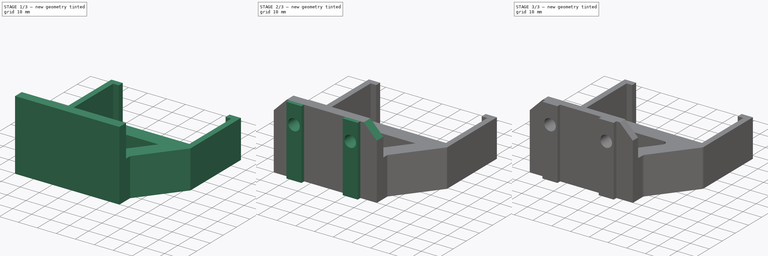
[diagram: build sequence overview — one tinted view per stage of 3, left to right]
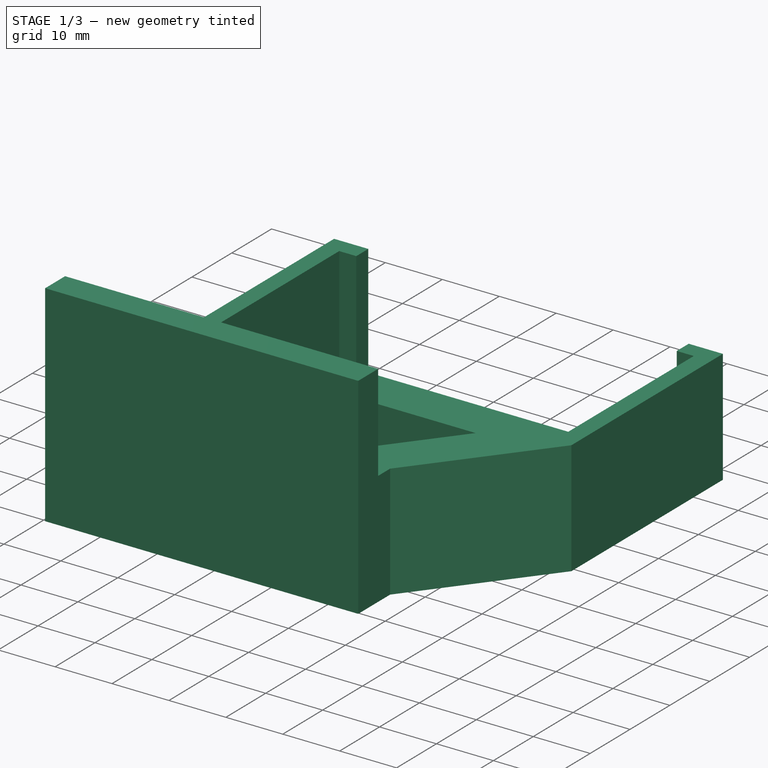
[diagram: stage 1 of 3 — iso view after this stage's code; geometry added in this stage tinted green]
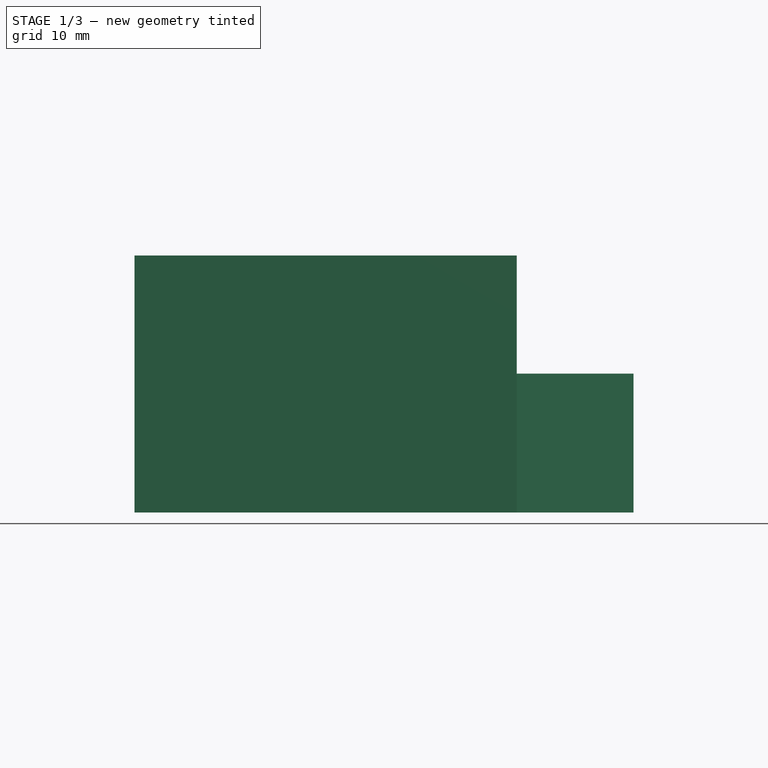
[diagram: stage 1 of 3 — front view after this stage's code; geometry added in this stage tinted green]
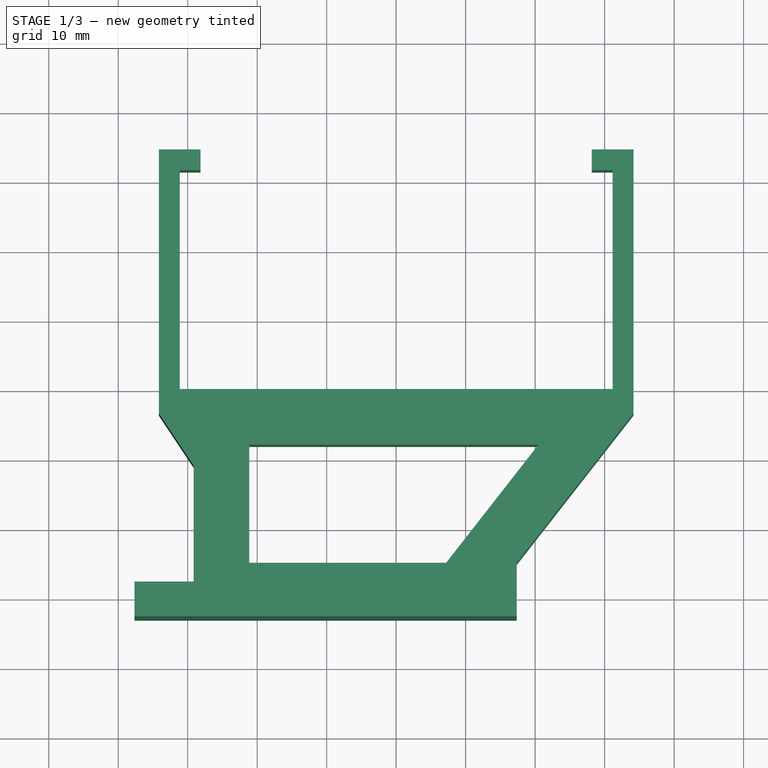
[diagram: stage 1 of 3 — top view after this stage's code; geometry added in this stage tinted green]
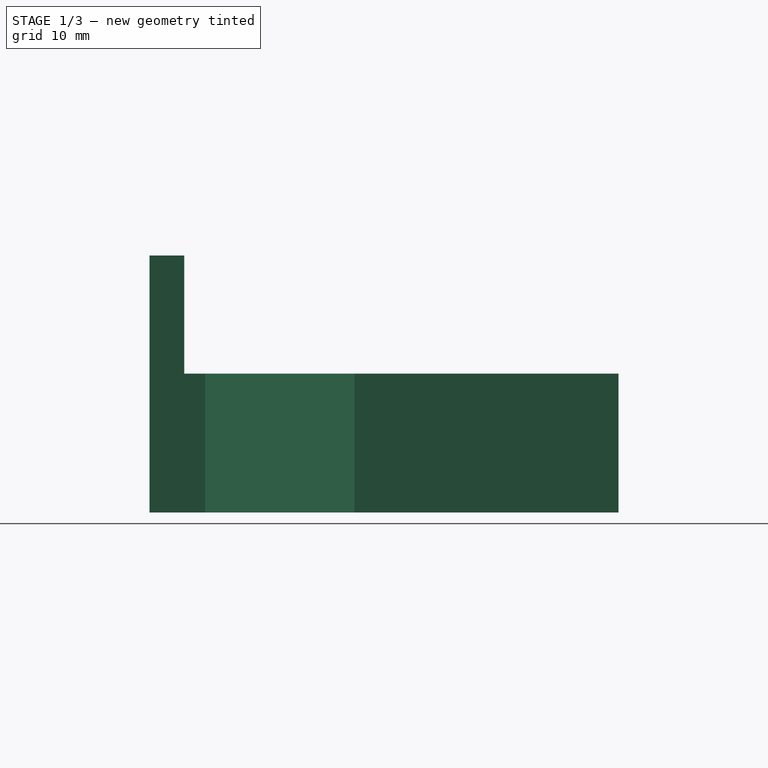
[diagram: stage 1 of 3 — right view after this stage's code; geometry added in this stage tinted green]
FCSTD DOCUMENT  (FreeCAD 0.20R)
Label: psu_holderM6
License: All rights reserved
LicenseURL: http://en.wikipedia.org/wiki/All_rights_reserved
objects: Sketcher::SketchObject×4, PartDesign::Pad×3, PartDesign::Chamfer×2, PartDesign::Pocket×1, PartDesign::Fillet×1, PartDesign::Body×1
note: 19 computed .brp shape members not serialized (recipe doc carries the construction recipe); baked Part::Feature solids carry a one-line shape summary decoded from their .brp

FEATURE [Sketcher::SketchObject] Sketch
  FullyConstrained = true
  MapMode = 5
  Support = -> [XY_Plane]
  sketch-geometry (20):
    g0: LineSegment StartX=-31.15 StartY=0 StartZ=0 EndX=31.15 EndY=0 EndZ=0
    g1: LineSegment StartX=31.15 StartY=0 StartZ=0 EndX=31.15 EndY=31.5 EndZ=0
    g2: LineSegment StartX=31.15 StartY=31.5 StartZ=0 EndX=28.15 EndY=31.5 EndZ=0
    g3: LineSegment StartX=28.15 StartY=31.5 StartZ=0 EndX=28.15 EndY=34.5 EndZ=0
    g4: LineSegment StartX=28.15 StartY=34.5 StartZ=0 EndX=34.15 EndY=34.5 EndZ=0
    g5: LineSegment StartX=34.15 StartY=34.5 StartZ=0 EndX=34.15 EndY=-3.5 EndZ=0
    g6: LineSegment StartX=34.15 StartY=-3.5 StartZ=0 EndX=17.35 EndY=-25 EndZ=0
    g7: LineSegment StartX=17.35 StartY=-25 StartZ=0 EndX=17.35 EndY=-33 EndZ=0
    g8: LineSegment StartX=17.35 StartY=-33 StartZ=0 EndX=-29.15 EndY=-33 EndZ=0
    g9: LineSegment StartX=-29.15 StartY=-33 StartZ=0 EndX=-29.15 EndY=-11 EndZ=0
    g10: LineSegment StartX=-29.15 StartY=-11 StartZ=0 EndX=-34.15 EndY=-3.5 EndZ=0
    g11: LineSegment StartX=-34.15 StartY=-3.5 StartZ=0 EndX=-34.15 EndY=34.5 EndZ=0
    g12: LineSegment StartX=-34.15 StartY=34.5 StartZ=0 EndX=-28.15 EndY=34.5 EndZ=0
    g13: LineSegment StartX=-28.15 StartY=34.5 StartZ=0 EndX=-28.15 EndY=31.5 EndZ=0
    g14: LineSegment StartX=-28.15 StartY=31.5 StartZ=0 EndX=-31.15 EndY=31.5 EndZ=0
    g15: LineSegment StartX=-31.15 StartY=31.5 StartZ=0 EndX=-31.15 EndY=0 EndZ=0
    g16: LineSegment StartX=-21.15 StartY=-8 StartZ=0 EndX=20.481 EndY=-8 EndZ=0
    g17: LineSegment StartX=20.481 StartY=-8 StartZ=0 EndX=7.19731 EndY=-25 EndZ=0
    g18: LineSegment StartX=7.19731 StartY=-25 StartZ=0 EndX=-21.15 EndY=-25 EndZ=0
    g19: LineSegment StartX=-21.15 StartY=-25 StartZ=0 EndX=-21.15 EndY=-8 EndZ=0
  constraints (57):
    c: Coincident(g0,g1)
    c: Vertical(g1)
    c: Coincident(g1,g2)
    c: Coincident(g2,g3)
    c: Vertical(g3)
    c: Coincident(g3,g4)
    c: Horizontal(g4)
    c: Coincident(g4,g5)
    c: Vertical(g5)
    c: Coincident(g5,g6)
    c: Coincident(g6,g7)
    c: Vertical(g7)
    c: Coincident(g7,g8)
    c: Horizontal(g8)
    c: Vertical(g9)
    c: Coincident(g9,g10)
    c: Coincident(g10,g11)
    c: Vertical(g11)
    c: Coincident(g11,g12)
    c: Horizontal(g12)
    c: Coincident(g12,g13)
    c: Coincident(g13,g14)
    c: Horizontal(g14)
    c: Coincident(g14,g15)
    c: Vertical(g15)
    c: Coincident(g0,g15)
    c: Horizontal(g16)
    c: Coincident(g16,g17)
    c: Coincident(g17,g18)
    c: Horizontal(g18)
    c: Coincident(g18,g19)
    c: Vertical(g19)
    c: Coincident(g16,g19)
    c: Horizontal(g2)
    c: Symmetric(g0,g0,g-2)
    c: Symmetric(g13,g2,g-2)
    c: Symmetric(g11,g4,g-2)
    c: Equal(g12,g4)
    c: Equal(g11,g5)
    c: Distance(g15) = 31.5
    c: Distance(g13) = 3
    c: Distance(g14) = 3
    c: Distance(g14,g11) = 3
    c: Distance(g16,g0) = 8
    c: Distance(g16,g9) = 8
    c: Parallel(g6,g17)
    c: Distance(g16,g6) = 8
    c: Distance(g17,g8) = 8
    c: Coincident(g8,g9)
    c: Distance(g19) = 17
    c: Distance(g18,g11) = 13
    c: Distance(g0) = 62.3
    c: Distance(g8) = 46.5
    c: DistanceY(g11,g11) = 38
    c: Distance(g7) = 8
    c: Distance(g9) = 22
    c: PointOnObject(g0,g-1)
FEATURE [PartDesign::Pad] Pad
  Direction = (0,0,1)
  Length = 20
  Length2 = 10
  Profile = -> Sketch
  ReferenceAxis = -> Sketch [N_Axis]
  Type = 0
FEATURE [Sketcher::SketchObject] Sketch001
  ExternalGeometry = -> [Pad]
  FullyConstrained = true
  MapMode = 5
  Placement = pos=(0,0,0) rot=(1,0,0;3.14159rad)
  Support = -> [Pad]
  sketch-geometry (4):
    g0: LineSegment StartX=17.35 StartY=33 StartZ=0 EndX=-37.65 EndY=33 EndZ=0
    g1: LineSegment StartX=-37.65 StartY=33 StartZ=0 EndX=-37.65 EndY=28 EndZ=0
    g2: LineSegment StartX=-37.65 StartY=28 StartZ=0 EndX=17.35 EndY=28 EndZ=0
    g3: LineSegment StartX=17.35 StartY=28 StartZ=0 EndX=17.35 EndY=33 EndZ=0
  constraints (11):
    c: Coincident(g0,g1)
    c: Coincident(g1,g2)
    c: Coincident(g2,g3)
    c: Coincident(g3,g0)
    c: Horizontal(g0)
    c: Horizontal(g2)
    c: Vertical(g1)
    c: Vertical(g3)
    c: Coincident(g0,g-4)
    c: Distance(g1) = 5
    c: Distance(g0) = 55
FEATURE [PartDesign::Pad] Pad001
  BaseFeature = -> Pad
  Direction = (0,0,-1)
  Length = 37
  Length2 = 10
  Profile = -> Sketch001
  ReferenceAxis = -> Sketch001 [N_Axis]
  Refine = true
  Reversed = true
  Type = 0
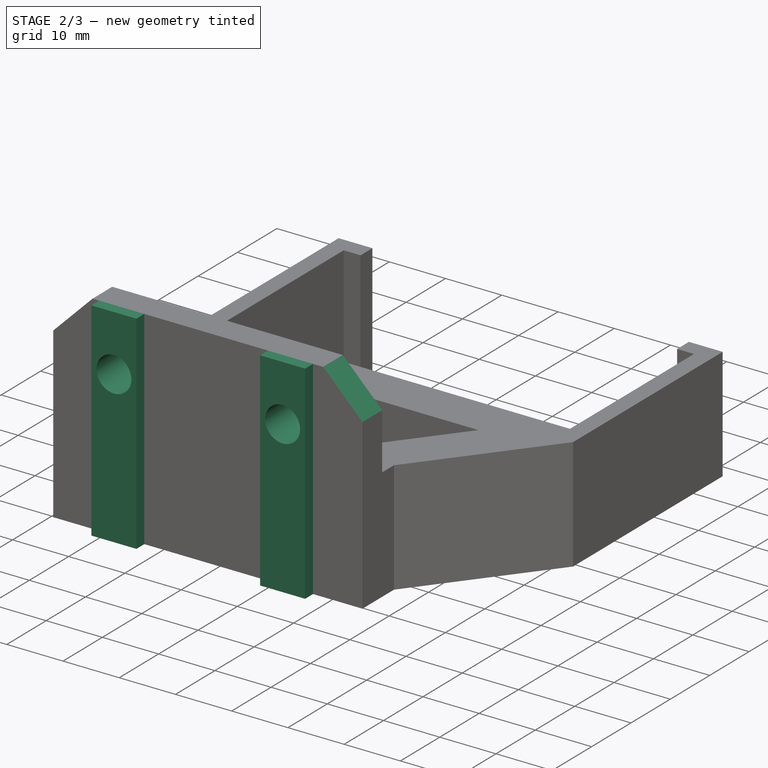
[diagram: stage 2 of 3 — iso view after this stage's code; geometry added in this stage tinted green]
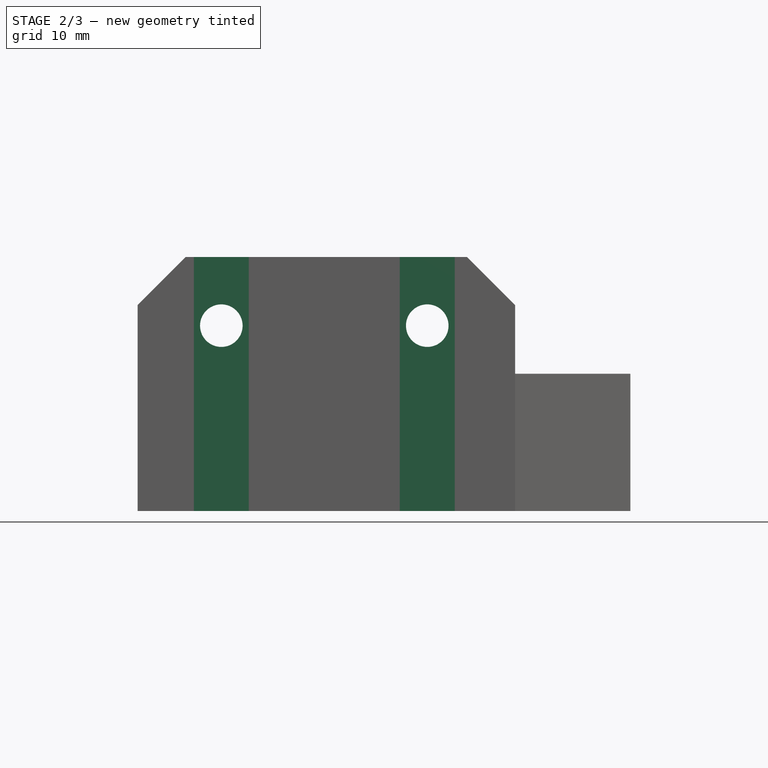
[diagram: stage 2 of 3 — front view after this stage's code; geometry added in this stage tinted green]
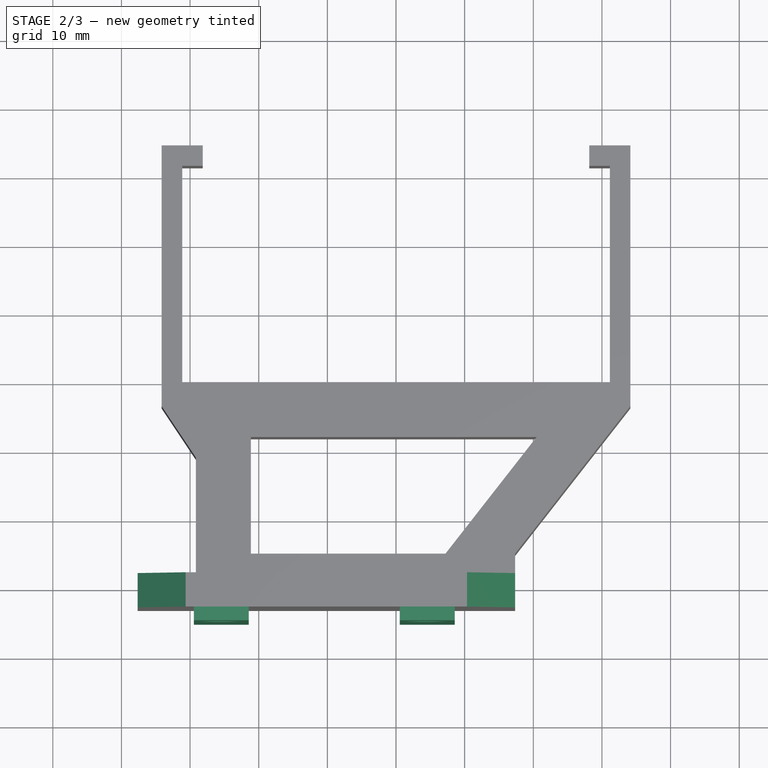
[diagram: stage 2 of 3 — top view after this stage's code; geometry added in this stage tinted green]
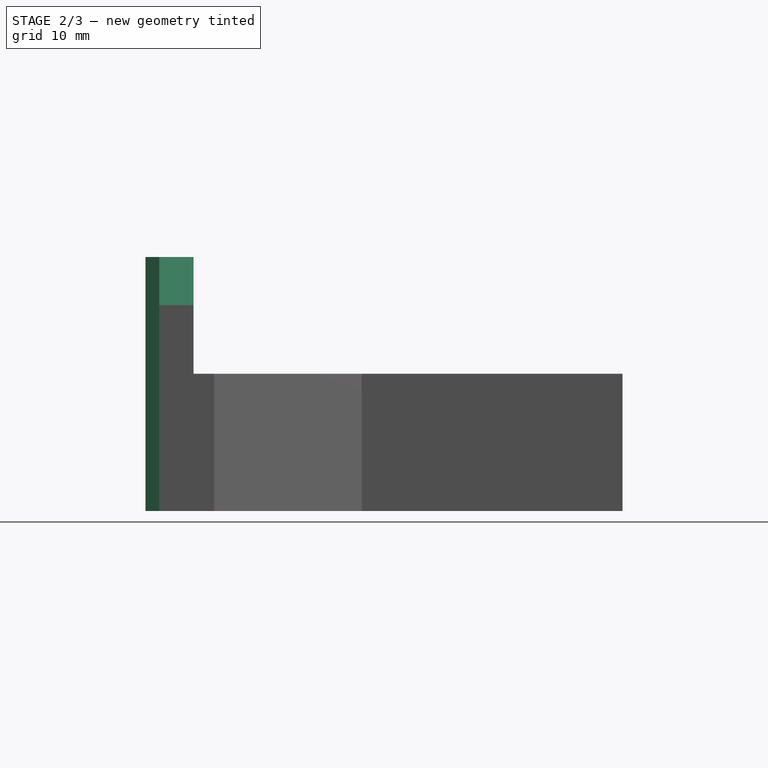
[diagram: stage 2 of 3 — right view after this stage's code; geometry added in this stage tinted green]
FEATURE [Sketcher::SketchObject] Sketch002
  ExternalGeometry = -> [Pad001]
  FullyConstrained = true
  MapMode = 5
  Placement = pos=(0,-33,0) rot=(1,0,0;1.5708rad)
  Support = -> [Pad001]
  sketch-geometry (8):
    g0: LineSegment StartX=0.55 StartY=37 StartZ=0 EndX=8.55 EndY=37 EndZ=0
    g1: LineSegment StartX=8.55 StartY=37 StartZ=0 EndX=8.55 EndY=0 EndZ=0
    g2: LineSegment StartX=8.55 StartY=0 StartZ=0 EndX=0.55 EndY=0 EndZ=0
    g3: LineSegment StartX=0.55 StartY=0 StartZ=0 EndX=0.55 EndY=37 EndZ=0
    g4: LineSegment StartX=-29.45 StartY=37 StartZ=0 EndX=-21.45 EndY=37 EndZ=0
    g5: LineSegment StartX=-21.45 StartY=37 StartZ=0 EndX=-21.45 EndY=0 EndZ=0
    g6: LineSegment StartX=-21.45 StartY=0 StartZ=0 EndX=-29.45 EndY=0 EndZ=0
    g7: LineSegment StartX=-29.45 StartY=0 StartZ=0 EndX=-29.45 EndY=37 EndZ=0
  constraints (24):
    c: Coincident(g0,g1)
    c: Coincident(g1,g2)
    c: Coincident(g2,g3)
    c: Coincident(g3,g0)
    c: Horizontal(g0)
    c: Horizontal(g2)
    c: Vertical(g1)
    c: Vertical(g3)
    c: PointOnObject(g0,g-3)
    c: PointOnObject(g1,g-1)
    c: Coincident(g4,g5)
    c: Coincident(g5,g6)
    c: Coincident(g6,g7)
    c: Coincident(g7,g4)
    c: Horizontal(g4)
    c: Horizontal(g6)
    c: Vertical(g5)
    c: Vertical(g7)
    c: PointOnObject(g4,g-3)
    c: PointOnObject(g5,g-1)
    c: Equal(g0,g4)
    c: Distance(g0) = 8
    c: Distance(g-4,g1) = 8.8
    c: Distance(g4,g3) = 22
FEATURE [PartDesign::Pad] Pad002
  BaseFeature = -> Pad001
  Direction = (0,-1,2e-16)
  Length = 2
  Length2 = 10
  Profile = -> Sketch002
  ReferenceAxis = -> Sketch002 [N_Axis]
  Type = 0
FEATURE [Sketcher::SketchObject] Sketch003
  ExternalGeometry = -> [Pad002]
  FullyConstrained = true
  MapMode = 5
  Placement = pos=(0,-28,0) rot=(0,0.707107,0.707107;3.14159rad)
  Support = -> [Pad002]
  sketch-geometry (3):
    g0: Circle CenterX=-4.55 CenterY=27 CenterZ=0 NormalX=0 NormalY=0 NormalZ=1 AngleXU=0 Radius=3.1
    g1: Circle CenterX=25.45 CenterY=27 CenterZ=0 NormalX=0 NormalY=0 NormalZ=1 AngleXU=0 Radius=3.1
    g2: LineSegment StartX=-4.55 StartY=27 StartZ=0 EndX=25.45 EndY=27 EndZ=0
  constraints (8):
    c: Equal(g0,g1)
    c: Diameter(g0) = 6.2
    c: Coincident(g2,g0)
    c: Coincident(g2,g1)
    c: Horizontal(g2)
    c: Distance(g2) = 30
    c: Distance(g0,g-4) = 12.8
    c: Distance(g0,g-3) = 7
FEATURE [PartDesign::Pocket] Pocket
  BaseFeature = -> Pad002
  Direction = (0,-1,2e-16)
  Length = 5
  Length2 = 5
  Profile = -> Sketch003
  ReferenceAxis = -> Sketch003 [N_Axis]
  Type = 1
FEATURE [PartDesign::Chamfer] Chamfer
  Angle = 45
  Base = -> Pocket [Edge75,Edge58]
  BaseFeature = -> Pocket
  ChamferType = 0
  FlipDirection = false
  Size = 7
  Size2 = 1
  SupportTransform = false
  UseAllEdges = false
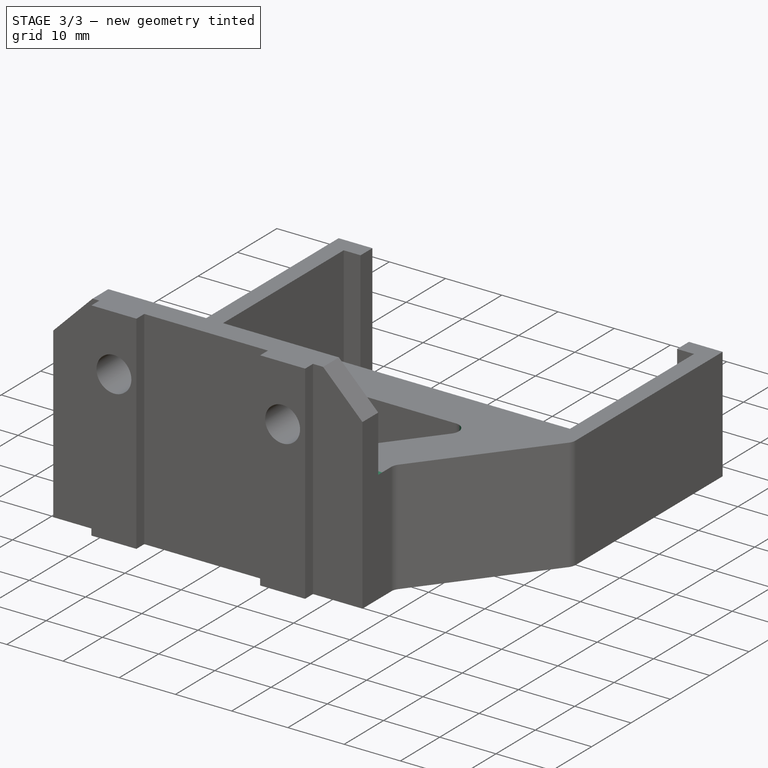
[diagram: stage 3 of 3 — iso view after this stage's code; geometry added in this stage tinted green]
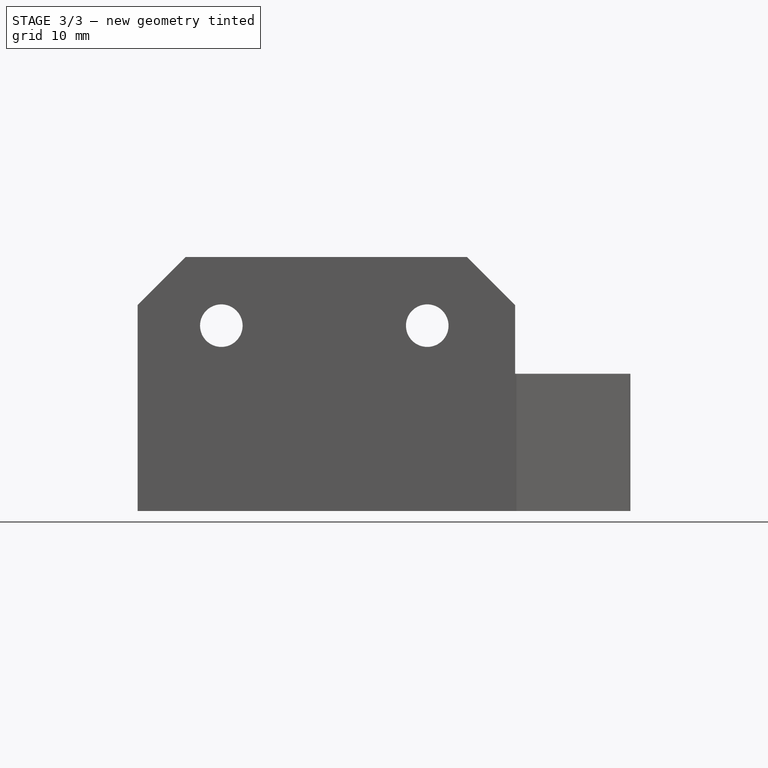
[diagram: stage 3 of 3 — front view after this stage's code; geometry added in this stage tinted green]
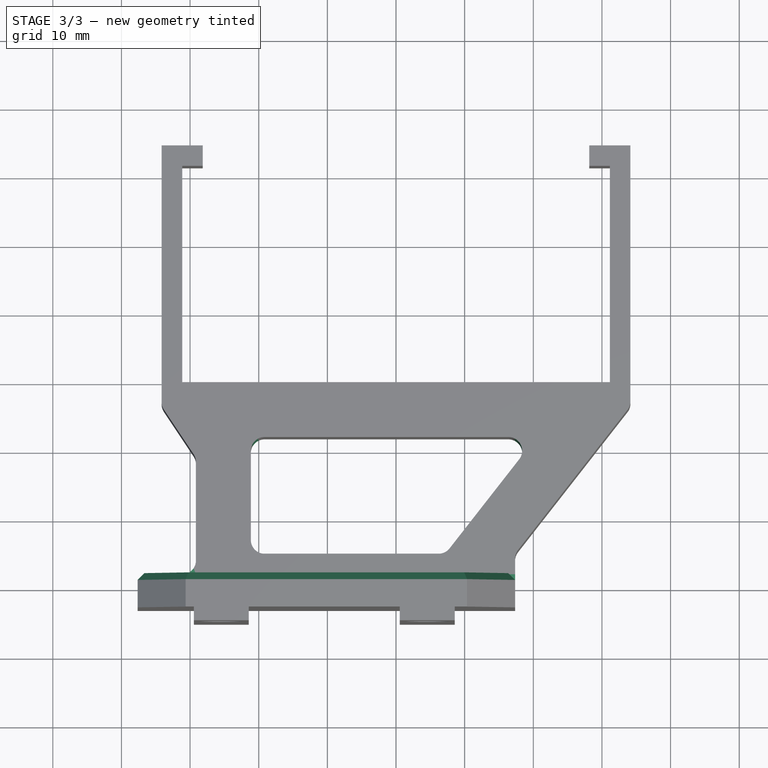
[diagram: stage 3 of 3 — top view after this stage's code; geometry added in this stage tinted green]
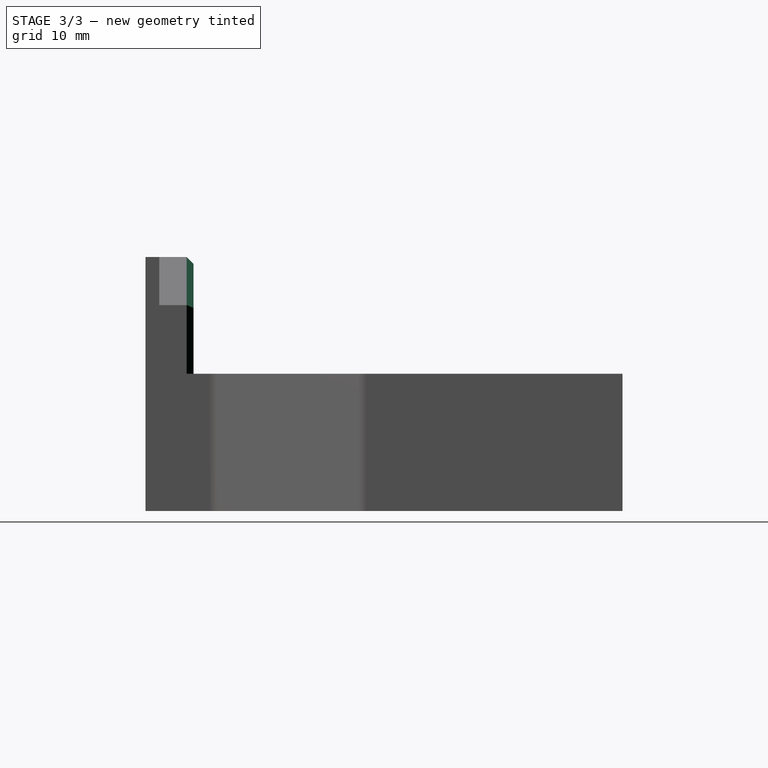
[diagram: stage 3 of 3 — right view after this stage's code; geometry added in this stage tinted green]
FEATURE [PartDesign::Fillet] Fillet
  Base = -> Chamfer [Edge11,Edge71,Edge82,Edge5,Edge39,Edge90,Edge88,Edge87,Edge89]
  BaseFeature = -> Chamfer
  Radius = 2
  SupportTransform = false
  UseAllEdges = false
FEATURE [PartDesign::Chamfer] Chamfer001
  Angle = 45
  Base = -> Fillet [Edge41,Edge40,Edge42,Edge43,Edge3]
  BaseFeature = -> Fillet
  ChamferType = 0
  FlipDirection = false
  Size = 1
  Size2 = 1
  SupportTransform = false
  UseAllEdges = false
FEATURE [PartDesign::Body] Body
  Group = -> [Sketch,Pad,Sketch001,Pad001,Sketch002,Pad002,Sketch003,Pocket,Chamfer,Fillet,Chamfer001]
  Origin = -> Origin
  Tip = -> Chamfer001
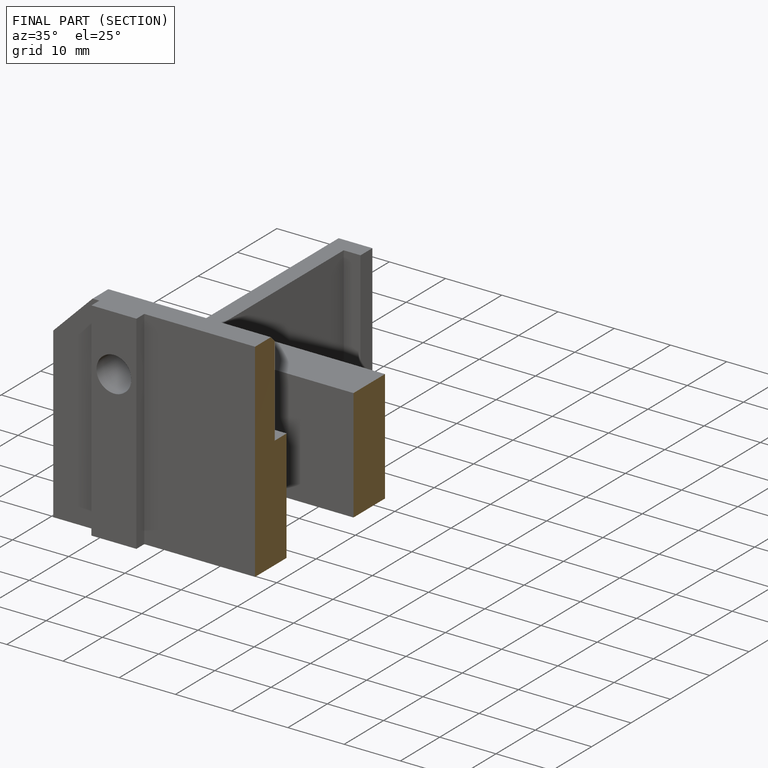
[diagram: finished part — half-section view (interior)]
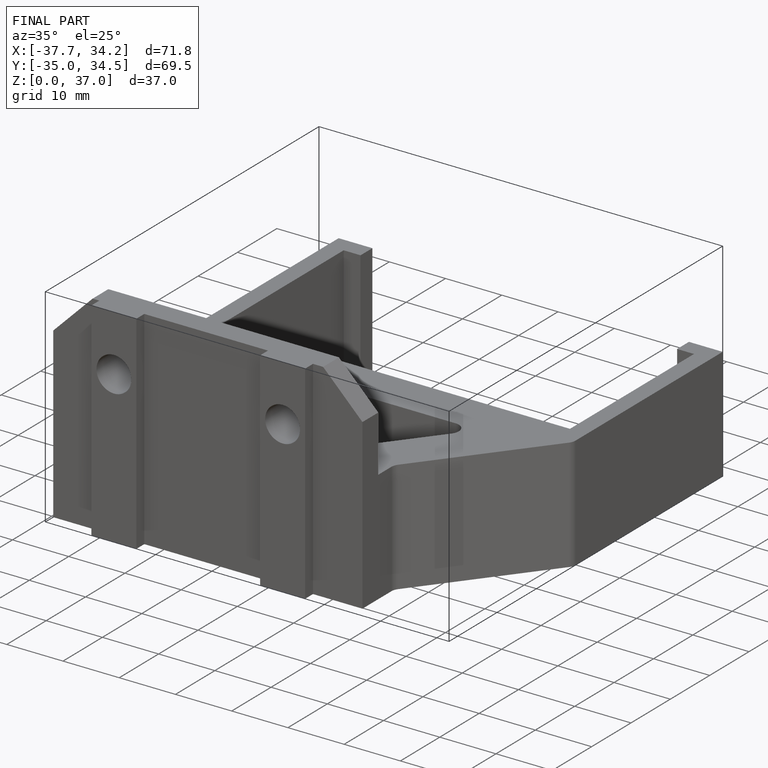
[diagram: finished part — iso view with bounding-box wireframe]
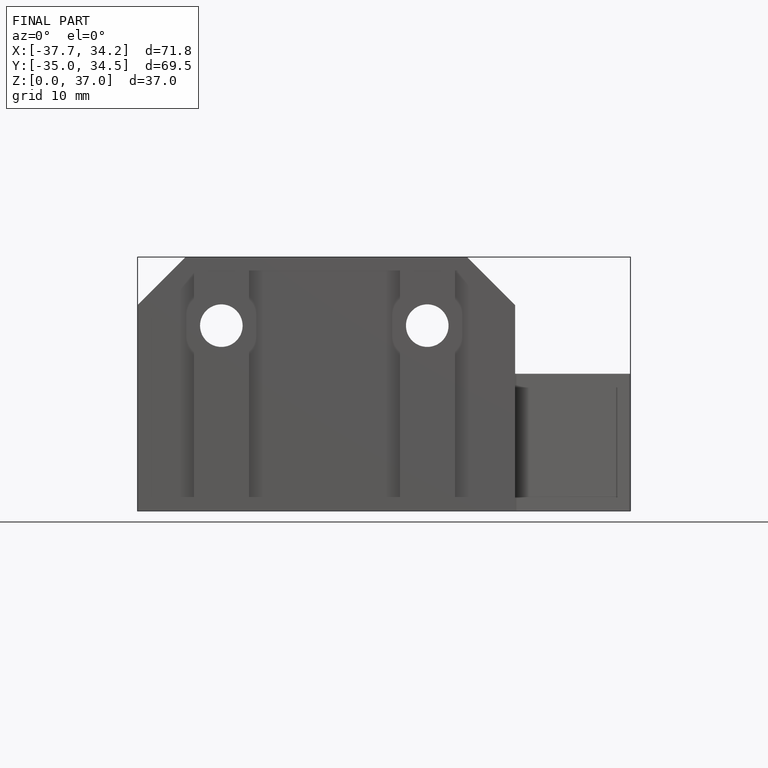
[diagram: finished part — front view with bounding-box wireframe]
